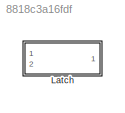
MODEL slx_8818c3a16fdf
KIND library
CONFIG AbsTol = auto
CONFIG EnableMultiTasking = on
CONFIG FixedStep = auto
CONFIG MaxStep = auto
CONFIG MinStep = auto
CONFIG RelTol = 1e-3
CONFIG SampleTimeConstraint = Unconstrained
CONFIG Solver = ode45
CONFIG SolverName = ode45
CONFIG StartTime = 0.0
CONFIG StopTime = 10.0
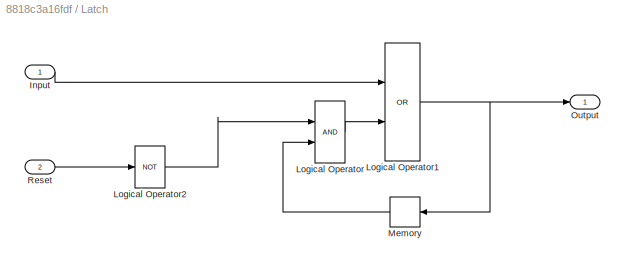
BLOCK [SubSystem] Latch
  Ports = [2, 1]
  RequestExecContextInheritance = off
  Variant = off
BLOCK [Inport] Latch/Input
  IconDisplay = Port number
BLOCK [Logic] Latch/Logical Operator
  AllPortsSameDT = off
  OutDataTypeStr = boolean
  Ports = [2, 1]
BLOCK [Logic] Latch/Logical Operator1
  AllPortsSameDT = off
  Operator = OR
  OutDataTypeStr = boolean
  Ports = [2, 1]
BLOCK [Logic] Latch/Logical Operator2
  AllPortsSameDT = off
  Operator = NOT
  OutDataTypeStr = boolean
  Ports = [1, 1]
BLOCK [Memory] Latch/Memory
BLOCK [Outport] Latch/Output
  IconDisplay = Port number
BLOCK [Inport] Latch/Reset
  IconDisplay = Port number
  Port = 2
LINE Latch/Input:1 -> Latch/Logical Operator1:1
NET Latch/Logical Operator1:1 -> Latch/Memory:1, Latch/Output:1
LINE Latch/Logical Operator2:1 -> Latch/Logical Operator:1
LINE Latch/Logical Operator:1 -> Latch/Logical Operator1:2
LINE Latch/Memory:1 -> Latch/Logical Operator:2
LINE Latch/Reset:1 -> Latch/Logical Operator2:1
note: NET lines group one-source signal fan-out (src -> all destinations, sorted); 1:1 wires keep LINE
